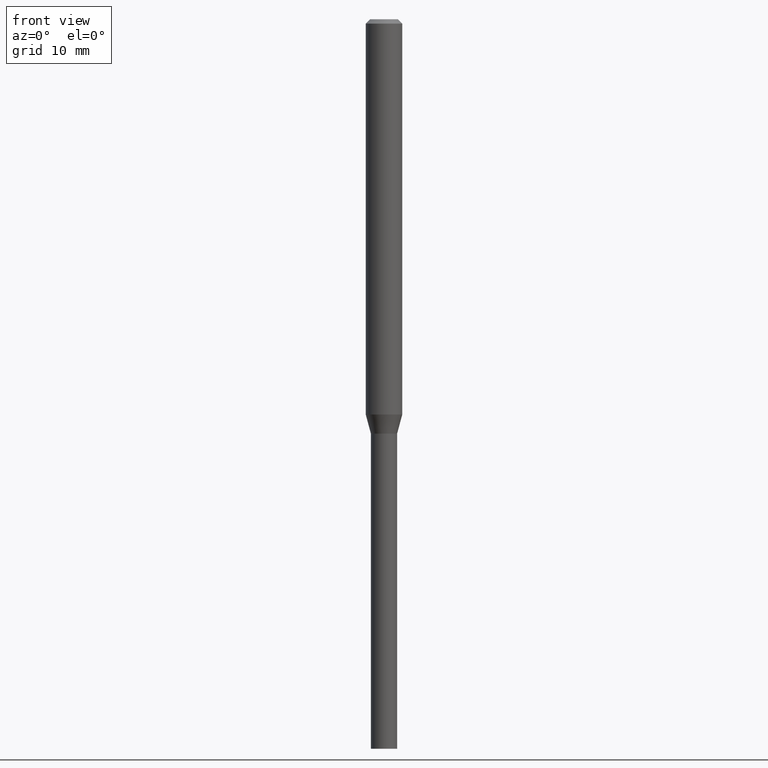
[diagram: clean part render]
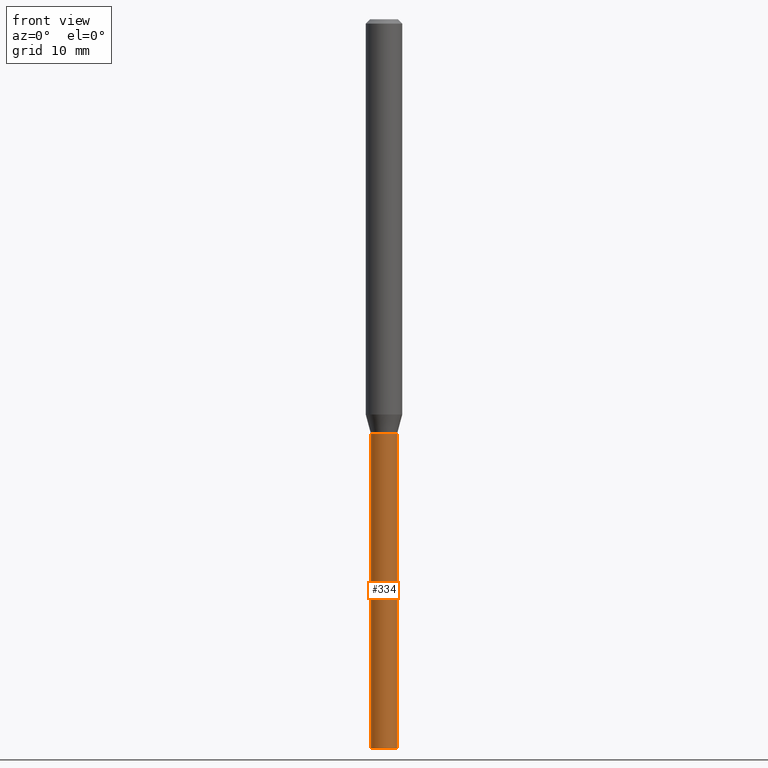
[diagram: same view with one face highlighted and labeled with its STEP entity id]
A machine part, front view. The second image highlights one B-rep face of the part: STEP entity #334.
In plain terms, the highlighted cylindrical surface (edge-blend (fillet) strip) has radius 1.143 mm, axis along (-0, 0, 1).
Its self-contained STEP definition (entity closure, byte-faithful):
#19 = VERTEX_POINT ( 'NONE', #102 ) ;
#25 = DIRECTION ( 'NONE',  ( 1.000000000000000000, -6.982962677686266711E-15, 4.876176775795935793E-29 ) ) ;
#49 = VERTEX_POINT ( 'NONE', #398 ) ;
#56 = CIRCLE ( 'NONE', #104, 0.04499999999999999833 ) ;
#62 = CARTESIAN_POINT ( 'NONE',  ( 3.472565704782894214E-29, -4.957903501157267351E-15, -1.420000000000000151 ) ) ;
#82 = LINE ( 'NONE', #343, #250 ) ;
#90 = VERTEX_POINT ( 'NONE', #194 ) ;
#94 = CIRCLE ( 'NONE', #362, 0.04499999999999999833 ) ;
#102 = CARTESIAN_POINT ( 'NONE',  ( 0.04499999999999999833, -5.272136821653149037E-15, -1.420000000000000151 ) ) ;
#103 = EDGE_CURVE ( 'NONE', #385, #49, #94, .T. ) ;
#104 = AXIS2_PLACEMENT_3D ( 'NONE', #62, #143, #392 ) ;
#124 = CYLINDRICAL_SURFACE ( 'NONE', #310, 0.04499999999999999833 ) ;
#143 = DIRECTION ( 'NONE',  ( -2.445468806185136597E-29, 3.491481338843145583E-15, 1.000000000000000000 ) ) ;
#166 = DIRECTION ( 'NONE',  ( -2.445468806185136877E-29, 3.491481338843145188E-15, 1.000000000000000000 ) ) ;
#192 = CARTESIAN_POINT ( 'NONE',  ( 6.113672015462842613E-29, -8.728703347107864943E-15, -2.500000000000000000 ) ) ;
#194 = CARTESIAN_POINT ( 'NONE',  ( -0.04499999999999999833, -6.523559193040520779E-15, -1.420000000000000151 ) ) ;
#215 = ORIENTED_EDGE ( 'NONE', *, *, #436, .F. ) ;
#220 = LINE ( 'NONE', #364, #446 ) ;
#223 = EDGE_CURVE ( 'NONE', #385, #90, #220, .T. ) ;
#229 = FACE_OUTER_BOUND ( 'NONE', #339, .T. ) ;
#250 = VECTOR ( 'NONE', #450, 39.37007874015748143 ) ;
#264 = DIRECTION ( 'NONE',  ( 1.000000000000000000, -6.982962677686246989E-15, 0.000000000000000000 ) ) ;
#274 = EDGE_CURVE ( 'NONE', #49, #19, #82, .T. ) ;
#277 = CARTESIAN_POINT ( 'NONE',  ( 0.000000000000000000, 0.000000000000000000, 0.000000000000000000 ) ) ;
#279 = CARTESIAN_POINT ( 'NONE',  ( -0.04499999999999999833, -6.523559193040520779E-15, -2.500000000000000000 ) ) ;
#310 = AXIS2_PLACEMENT_3D ( 'NONE', #277, #382, #25 ) ;
#331 = DIRECTION ( 'NONE',  ( -2.445468806185136597E-29, 3.491481338843145583E-15, 1.000000000000000000 ) ) ;
#334 = ADVANCED_FACE ( 'NONE', ( #229 ), #124, .T. ) ;
#339 = EDGE_LOOP ( 'NONE', ( #466, #412, #342, #215 ) ) ;
#342 = ORIENTED_EDGE ( 'NONE', *, *, #274, .T. ) ;
#343 = CARTESIAN_POINT ( 'NONE',  ( 0.04499999999999999833, -3.142333204958819823E-16, 2.194279549108170967E-30 ) ) ;
#362 = AXIS2_PLACEMENT_3D ( 'NONE', #192, #331, #264 ) ;
#364 = CARTESIAN_POINT ( 'NONE',  ( -0.04499999999999999833, 3.197442310920450718E-16, -2.213520790614707560E-30 ) ) ;
#382 = DIRECTION ( 'NONE',  ( -2.445468806185136597E-29, 3.491481338843145583E-15, 1.000000000000000000 ) ) ;
#385 = VERTEX_POINT ( 'NONE', #279 ) ;
#392 = DIRECTION ( 'NONE',  ( 1.000000000000000000, -6.982962677686269077E-15, 0.000000000000000000 ) ) ;
#398 = CARTESIAN_POINT ( 'NONE',  ( 0.04499999999999999833, -9.042936667603745051E-15, -2.500000000000000000 ) ) ;
#412 = ORIENTED_EDGE ( 'NONE', *, *, #103, .T. ) ;
#436 = EDGE_CURVE ( 'NONE', #90, #19, #56, .T. ) ;
#446 = VECTOR ( 'NONE', #166, 39.37007874015748143 ) ;
#450 = DIRECTION ( 'NONE',  ( -2.445468806185136877E-29, 3.491481338843145188E-15, 1.000000000000000000 ) ) ;
#466 = ORIENTED_EDGE ( 'NONE', *, *, #223, .F. ) ;